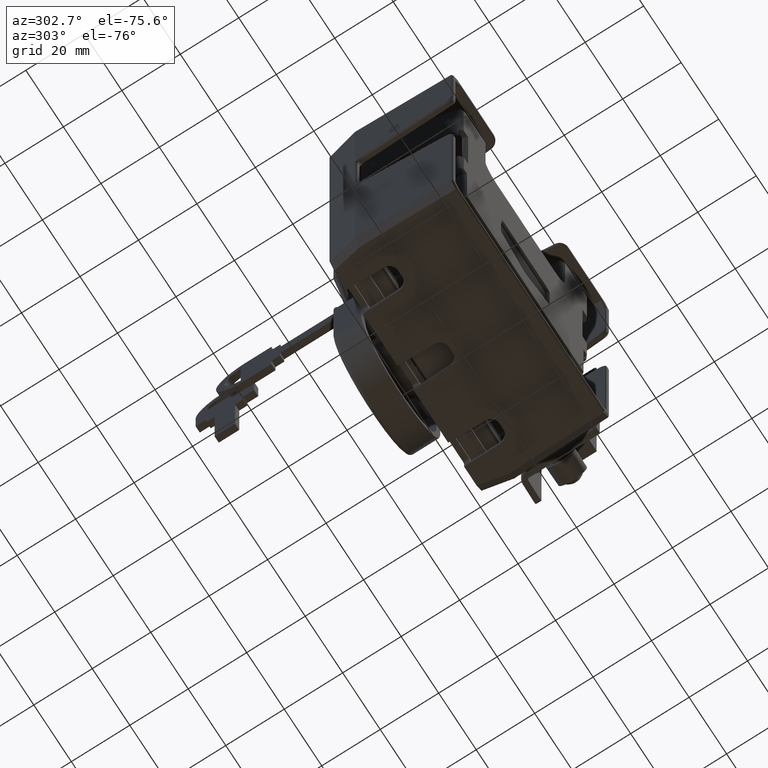
[diagram: clean part render]
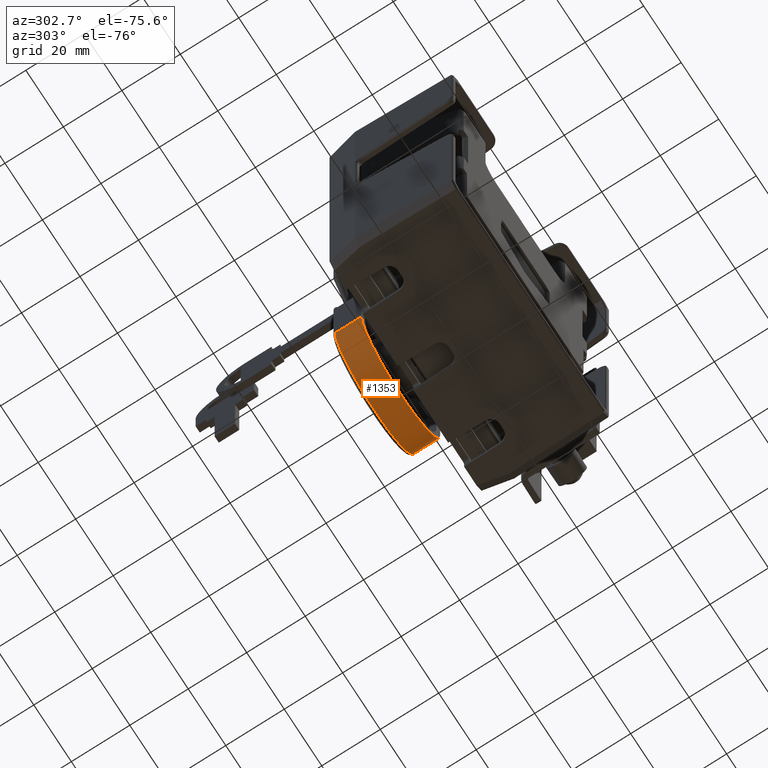
[diagram: same view with one face highlighted and labeled with its STEP entity id]
A machine part, auxiliary view. The second image highlights one B-rep face of the part: STEP entity #1353.
In plain terms, the highlighted cylindrical surface (partial cylindrical patch) has radius 21 mm, axis along (0, 1, -0).
Its self-contained STEP definition (entity closure, byte-faithful):
#1353=ADVANCED_FACE('',(#11199),#11198,.T.);
#11198=CYLINDRICAL_SURFACE('',#23819,2.10000000398E+01);
#11199=FACE_OUTER_BOUND('',#23820,.T.);
#23816=CARTESIAN_POINT('',(0.00000000000E+00,-1.00000000000E+03,-1.00000000000E+02));
#23817=DIRECTION('',(-0.00000000000E+00,-1.00000000000E+00,-0.00000000000E+00));
#23818=DIRECTION('',(1.22464679915E-16,0.00000000000E+00,1.00000000000E+00));
#23819=AXIS2_PLACEMENT_3D('',#23816,#23817,#23818);
#23820=EDGE_LOOP('',(#33274,#33275,#33276,#33277));
#33274=ORIENTED_EDGE('',*,*,#39317,.F.);
#33275=ORIENTED_EDGE('',*,*,#39217,.T.);
#33276=ORIENTED_EDGE('',*,*,#39316,.T.);
#33277=ORIENTED_EDGE('',*,*,#39318,.T.);
#39217=EDGE_CURVE('',#56949,#56902,#56963,.T.);
#39316=EDGE_CURVE('',#56902,#57625,#57632,.T.);
#39317=EDGE_CURVE('',#56949,#57638,#57639,.T.);
#39318=EDGE_CURVE('',#57625,#57638,#57645,.T.);
#56902=VERTEX_POINT('',#78525);
#56949=VERTEX_POINT('',#78556);
#56963=CIRCLE('',#78569,2.10000000398E+01);
#57625=VERTEX_POINT('',#78966);
#57632=LINE('',#78970,#78971);
#57638=VERTEX_POINT('',#78973);
#57639=LINE('',#78974,#78975);
#57645=CIRCLE('',#78980,2.10000000398E+01);
#78525=CARTESIAN_POINT('',(-2.10000000398E+01,-8.99999999994E+00,-1.00000000000E+02));
#78556=CARTESIAN_POINT('',(2.10000000398E+01,-8.99999999994E+00,-1.00000000000E+02));
#78566=CARTESIAN_POINT('',(0.00000000000E+00,-8.99999999994E+00,-1.00000000000E+02));
#78567=DIRECTION('',(-0.00000000000E+00,1.00000000000E+00,0.00000000000E+00));
#78568=DIRECTION('',(1.00000000000E+00,0.00000000000E+00,1.83690953073E-16));
#78569=AXIS2_PLACEMENT_3D('',#78566,#78567,#78568);
#78966=CARTESIAN_POINT('',(-2.10000000398E+01,0.00000000000E+00,-1.00000000000E+02));
#78970=CARTESIAN_POINT('',(-2.10000000398E+01,-8.99999999994E+00,-1.00000000000E+02));
#78971=VECTOR('',#78972,8.99999999994E+00);
#78972=DIRECTION('',(0.00000000000E+00,1.00000000000E+00,0.00000000000E+00));
#78973=CARTESIAN_POINT('',(2.10000000398E+01,0.00000000000E+00,-1.00000000000E+02));
#78974=CARTESIAN_POINT('',(2.10000000398E+01,-8.99999999994E+00,-1.00000000000E+02));
#78975=VECTOR('',#78976,8.99999999994E+00);
#78976=DIRECTION('',(0.00000000000E+00,1.00000000000E+00,0.00000000000E+00));
#78977=CARTESIAN_POINT('',(0.00000000000E+00,0.00000000000E+00,-1.00000000000E+02));
#78978=DIRECTION('',(0.00000000000E+00,-1.00000000000E+00,0.00000000000E+00));
#78979=DIRECTION('',(1.00000000000E+00,0.00000000000E+00,1.83690953073E-16));
#78980=AXIS2_PLACEMENT_3D('',#78977,#78978,#78979);